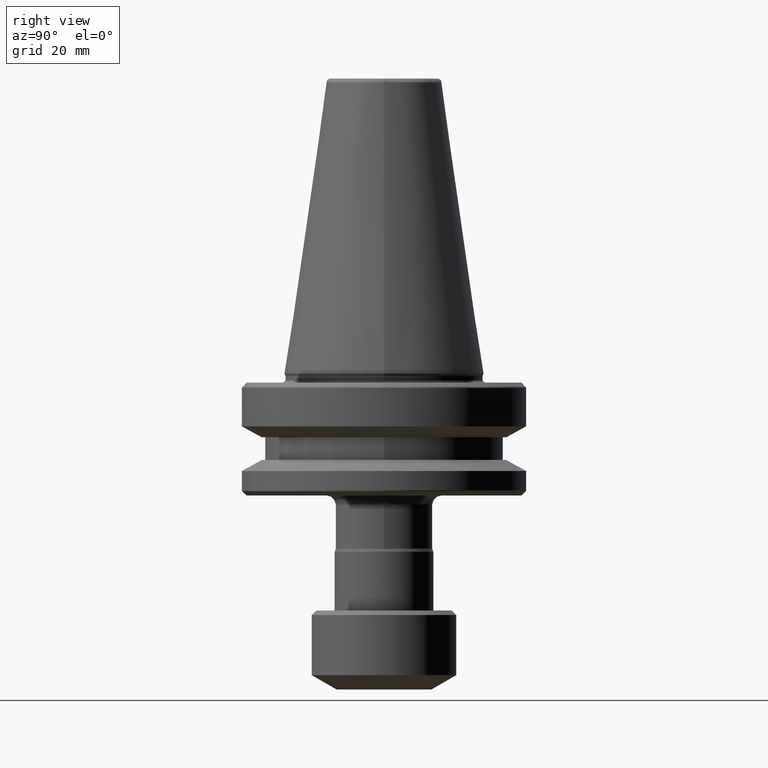
[diagram: clean part render]
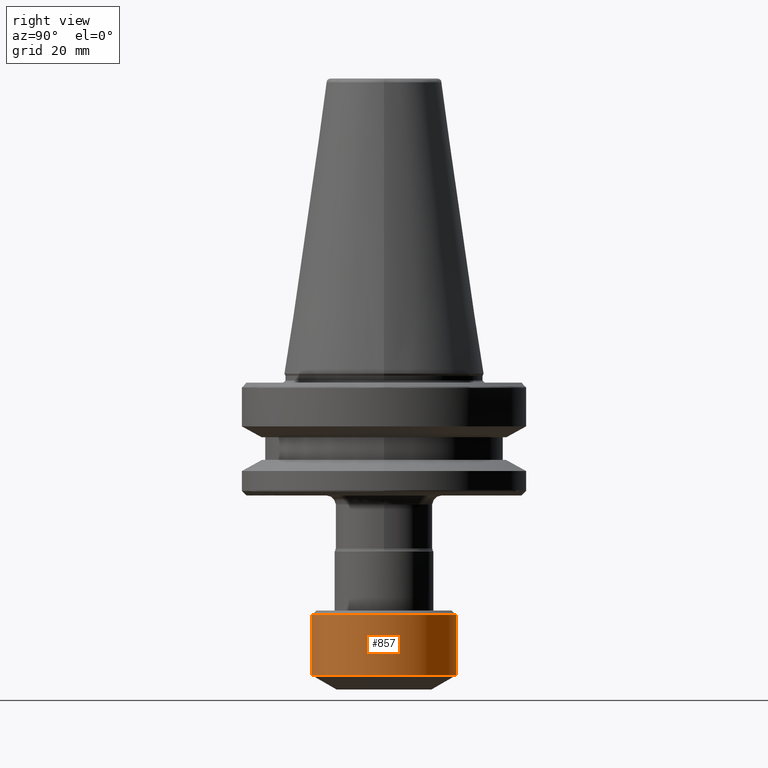
[diagram: same view with one face highlighted and labeled with its STEP entity id]
A machine part, right view. The second image highlights one B-rep face of the part: STEP entity #857.
In plain terms, the highlighted cylindrical surface (partial cylindrical patch) has radius 16 mm, axis along (-0, -0, 1).
Its self-contained STEP definition (entity closure, byte-faithful):
#123 = CIRCLE ( 'NONE', #2279, 16.00000000000001400 ) ;
#130 = DIRECTION ( 'NONE',  ( 0.0000000000000000000, -1.000000000000000000, 0.0000000000000000000 ) ) ;
#138 = DIRECTION ( 'NONE',  ( -0.0000000000000000000, -3.142173206417251200E-019, 1.000000000000000000 ) ) ;
#491 = CIRCLE ( 'NONE', #1515, 16.00000000000001400 ) ;
#543 = VECTOR ( 'NONE', #1278, 1000.000000000000000 ) ;
#556 = LINE ( 'NONE', #569, #543 ) ;
#569 = CARTESIAN_POINT ( 'NONE',  ( 0.0000000000000000000, -16.00000000000001400, 64.97215411341872500 ) ) ;
#622 = CARTESIAN_POINT ( 'NONE',  ( 1.959434878635767100E-015, 16.00000000000001400, -53.50000000000000700 ) ) ;
#658 = VECTOR ( 'NONE', #2858, 1000.000000000000000 ) ;
#758 = ORIENTED_EDGE ( 'NONE', *, *, #1717, .F. ) ;
#804 = CYLINDRICAL_SURFACE ( 'NONE', #1965, 16.00000000000001400 ) ;
#821 = FACE_OUTER_BOUND ( 'NONE', #2009, .T. ) ;
#837 = CARTESIAN_POINT ( 'NONE',  ( 0.0000000000000000000, -16.00000000000001400, -53.50000000000000700 ) ) ;
#857 = ADVANCED_FACE ( 'NONE', ( #821 ), #804, .T. ) ;
#1100 = VERTEX_POINT ( 'NONE', #837 ) ;
#1106 = CARTESIAN_POINT ( 'NONE',  ( 0.0000000000000000000, -1.098319482632361800E-017, -66.82457351947852000 ) ) ;
#1278 = DIRECTION ( 'NONE',  ( -0.0000000000000000000, -3.142173206417251200E-019, 1.000000000000000000 ) ) ;
#1331 = DIRECTION ( 'NONE',  ( 0.0000000000000000000, -1.000000000000000000, 0.0000000000000000000 ) ) ;
#1393 = EDGE_CURVE ( 'NONE', #2576, #1735, #2360, .T. ) ;
#1515 = AXIS2_PLACEMENT_3D ( 'NONE', #1106, #2644, #1331 ) ;
#1551 = CARTESIAN_POINT ( 'NONE',  ( 0.0000000000000000000, -1.517000661630783300E-017, -53.50000000000000700 ) ) ;
#1670 = VERTEX_POINT ( 'NONE', #1745 ) ;
#1704 = CARTESIAN_POINT ( 'NONE',  ( 1.959434878635767100E-015, 16.00000000000001400, -66.82457351947852000 ) ) ;
#1717 = EDGE_CURVE ( 'NONE', #1670, #1100, #556, .T. ) ;
#1735 = VERTEX_POINT ( 'NONE', #622 ) ;
#1745 = CARTESIAN_POINT ( 'NONE',  ( 0.0000000000000000000, -16.00000000000001400, -66.82457351947852000 ) ) ;
#1782 = CARTESIAN_POINT ( 'NONE',  ( 0.0000000000000000000, -5.239600945247980000E-017, 64.97215411341872500 ) ) ;
#1793 = DIRECTION ( 'NONE',  ( 0.0000000000000000000, -1.000000000000000000, 0.0000000000000000000 ) ) ;
#1965 = AXIS2_PLACEMENT_3D ( 'NONE', #1782, #2007, #130 ) ;
#1985 = ORIENTED_EDGE ( 'NONE', *, *, #1393, .T. ) ;
#2007 = DIRECTION ( 'NONE',  ( -0.0000000000000000000, -3.142173206417251200E-019, 1.000000000000000000 ) ) ;
#2009 = EDGE_LOOP ( 'NONE', ( #2569, #1985, #2623, #758 ) ) ;
#2051 = CARTESIAN_POINT ( 'NONE',  ( 1.959434878635767100E-015, 16.00000000000001400, 64.97215411341872500 ) ) ;
#2059 = EDGE_CURVE ( 'NONE', #1670, #2576, #491, .T. ) ;
#2279 = AXIS2_PLACEMENT_3D ( 'NONE', #1551, #138, #1793 ) ;
#2360 = LINE ( 'NONE', #2051, #658 ) ;
#2569 = ORIENTED_EDGE ( 'NONE', *, *, #2059, .T. ) ;
#2576 = VERTEX_POINT ( 'NONE', #1704 ) ;
#2623 = ORIENTED_EDGE ( 'NONE', *, *, #2806, .F. ) ;
#2644 = DIRECTION ( 'NONE',  ( -0.0000000000000000000, -3.142173206417251200E-019, 1.000000000000000000 ) ) ;
#2806 = EDGE_CURVE ( 'NONE', #1100, #1735, #123, .T. ) ;
#2858 = DIRECTION ( 'NONE',  ( -0.0000000000000000000, -3.142173206417251200E-019, 1.000000000000000000 ) ) ;